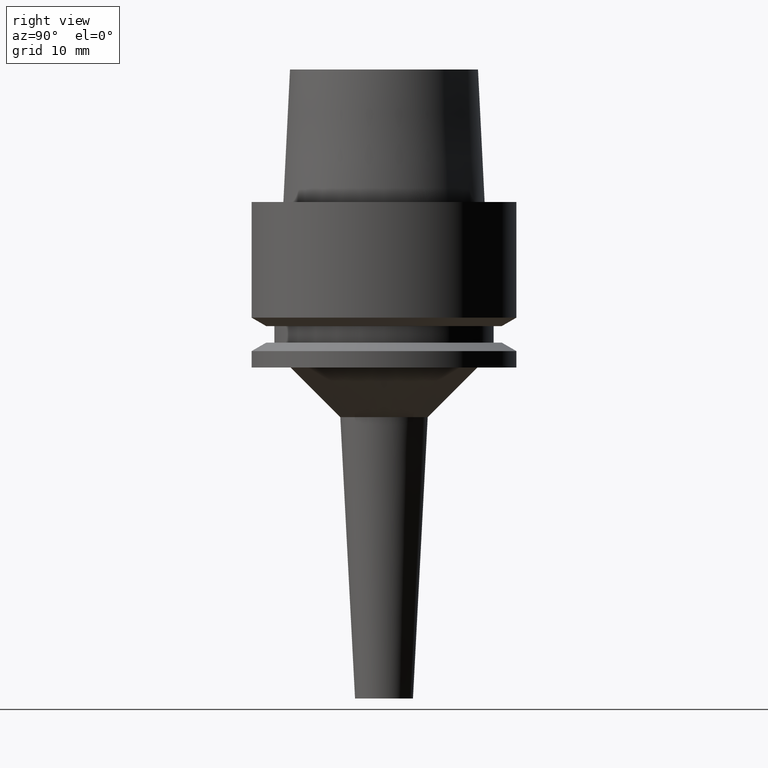
[diagram: clean part render]
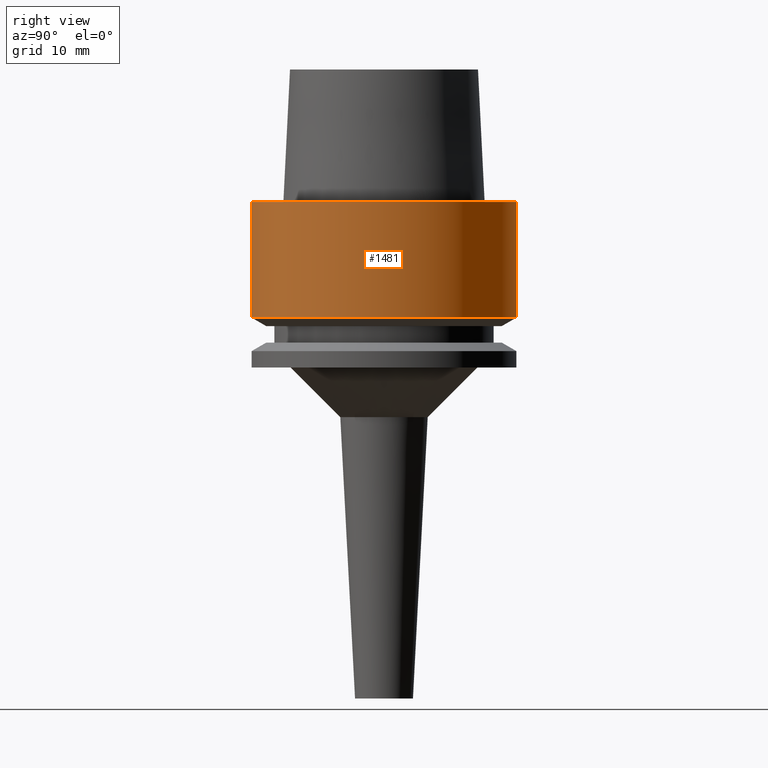
[diagram: same view with one face highlighted and labeled with its STEP entity id]
A machine part, right view. The second image highlights one B-rep face of the part: STEP entity #1481.
In plain terms, the highlighted cylindrical surface (partial cylindrical patch) has radius 16 mm, axis along (0, 0, -1).
Its self-contained STEP definition (entity closure, byte-faithful):
#651=CARTESIAN_POINT('',(0.E0,1.047199923065E-14,-1.397927405784E1));
#652=DIRECTION('',(0.E0,0.E0,1.E0));
#653=DIRECTION('',(0.E0,-1.E0,0.E0));
#654=AXIS2_PLACEMENT_3D('',#651,#652,#653);
#674=DIRECTION('',(0.E0,6.760163901580E-14,-1.E0));
#675=VECTOR('',#674,1.397927405784E1);
#676=CARTESIAN_POINT('',(0.E0,-1.6E1,2.605323364454E-14));
#677=LINE('',#676,#675);
#681=DIRECTION('',(0.E0,-6.798285126589E-14,-1.E0));
#682=VECTOR('',#681,1.397927405784E1);
#683=CARTESIAN_POINT('',(0.E0,1.6E1,2.605323364454E-14));
#684=LINE('',#683,#682);
#696=CARTESIAN_POINT('',(0.E0,1.467126865379E-14,4.263256414561E-14));
#697=DIRECTION('',(0.E0,0.E0,-1.E0));
#698=DIRECTION('',(0.E0,1.E0,0.E0));
#699=AXIS2_PLACEMENT_3D('',#696,#697,#698);
#824=CARTESIAN_POINT('',(0.E0,1.6E1,-1.397927405784E1));
#825=VERTEX_POINT('',#824);
#826=CARTESIAN_POINT('',(0.E0,-1.6E1,-1.397927405784E1));
#827=VERTEX_POINT('',#826);
#828=CARTESIAN_POINT('',(0.E0,1.6E1,2.605323364454E-14));
#829=VERTEX_POINT('',#828);
#830=CARTESIAN_POINT('',(0.E0,-1.6E1,4.263256414561E-14));
#831=VERTEX_POINT('',#830);
#1469=CARTESIAN_POINT('',(0.E0,1.467126865379E-14,1.98E1));
#1470=DIRECTION('',(0.E0,0.E0,-1.E0));
#1471=DIRECTION('',(0.E0,-1.E0,0.E0));
#1472=AXIS2_PLACEMENT_3D('',#1469,#1470,#1471);
#1473=CYLINDRICAL_SURFACE('',#1472,1.6E1);
#1474=ORIENTED_EDGE('',*,*,#1459,.T.);
#1475=ORIENTED_EDGE('',*,*,#1436,.F.);
#1476=ORIENTED_EDGE('',*,*,#1463,.F.);
#1478=ORIENTED_EDGE('',*,*,#1477,.F.);
#1479=EDGE_LOOP('',(#1474,#1475,#1476,#1478));
#1480=FACE_OUTER_BOUND('',#1479,.F.);
#655=CIRCLE('',#654,1.6E1);
#700=CIRCLE('',#699,1.6E1);
#1436=EDGE_CURVE('',#827,#825,#655,.T.);
#1459=EDGE_CURVE('',#829,#825,#684,.T.);
#1463=EDGE_CURVE('',#831,#827,#677,.T.);
#1477=EDGE_CURVE('',#829,#831,#700,.T.);
#1481=ADVANCED_FACE('',(#1480),#1473,.T.);